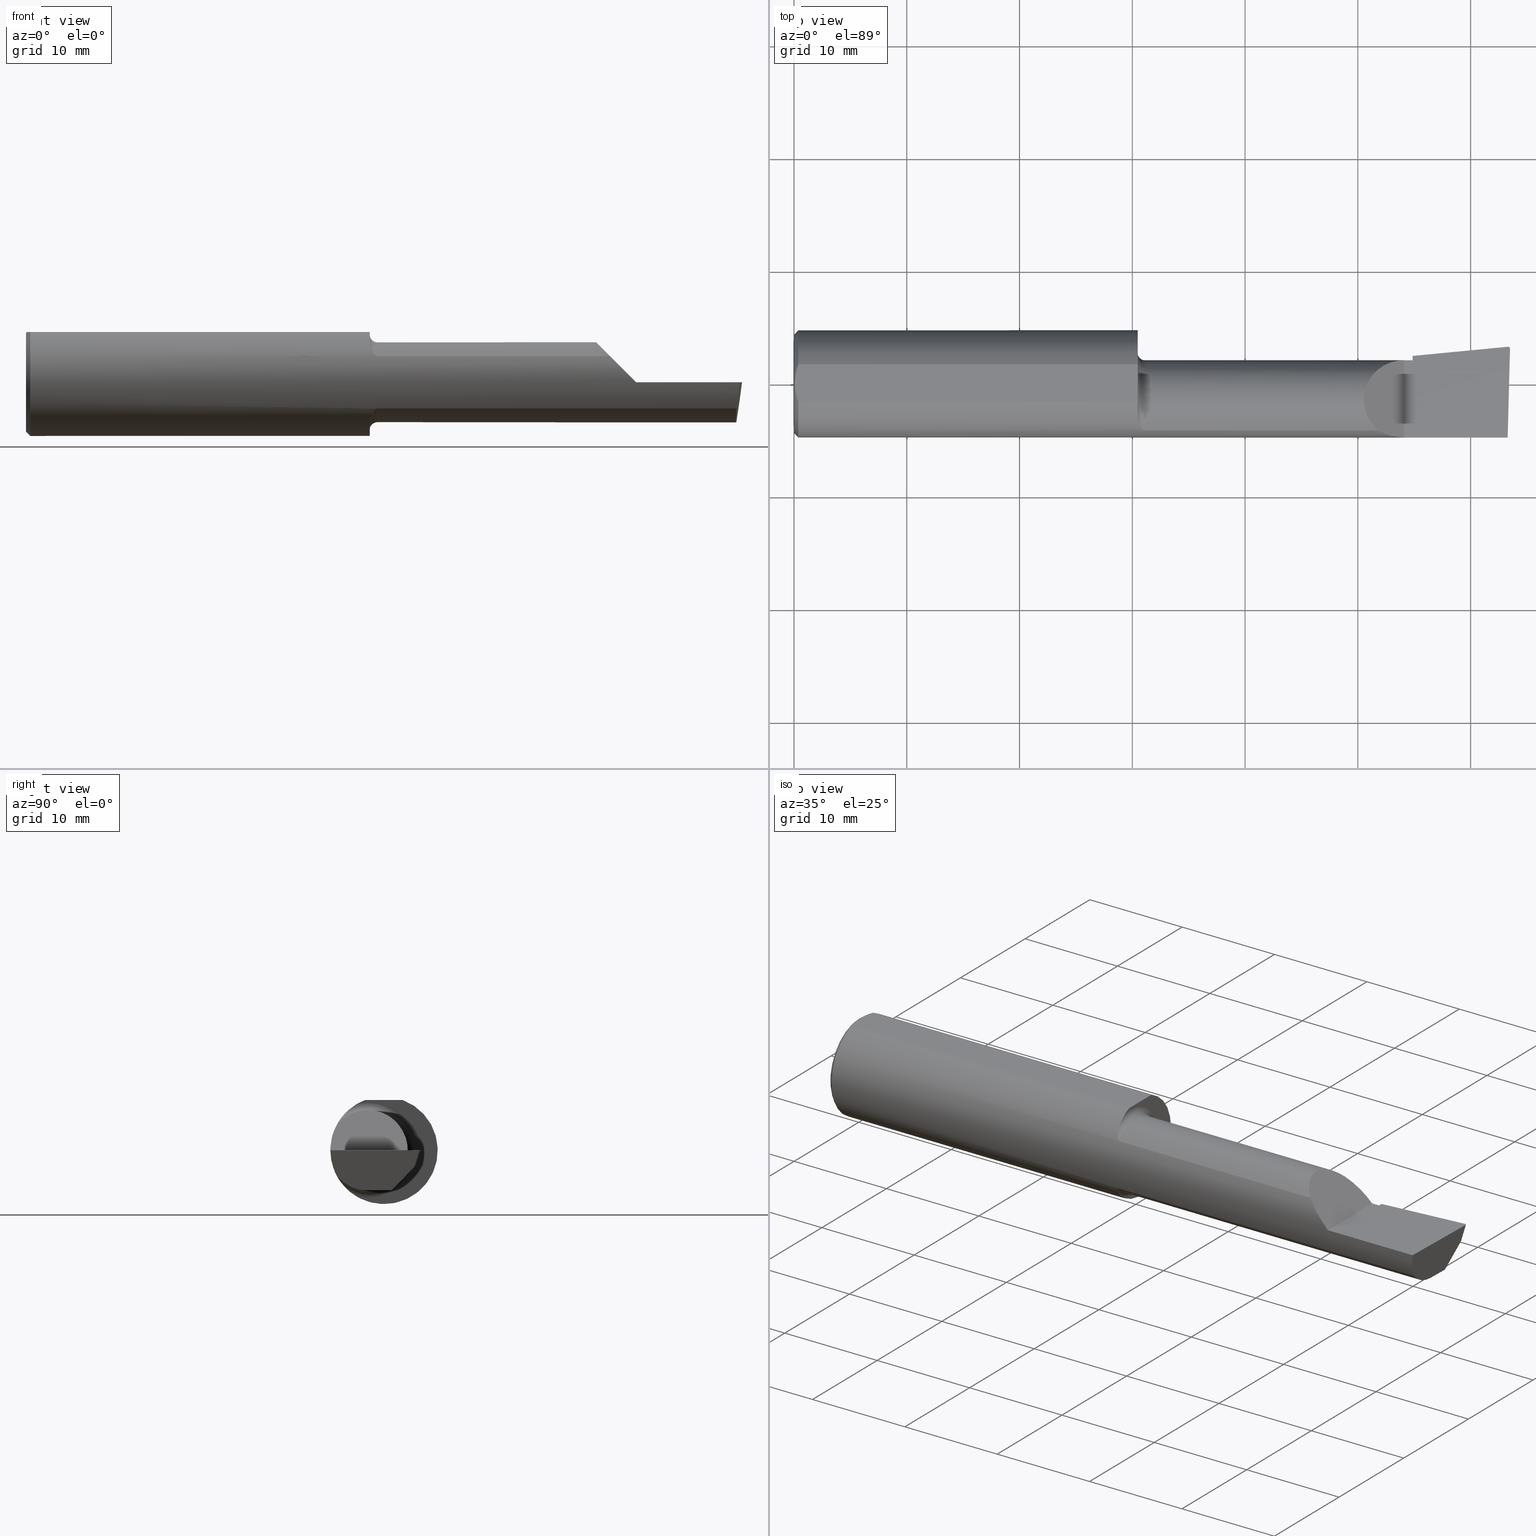
[diagram: canonical four-view strip — front | top / right | iso, engineering-drawing reading convention]
A machine part, canonical four-view strip (front | top / right | iso — engineering-drawing reading convention). The complete STEP part file that produces these views, byte-faithful:
ISO-10303-21;
HEADER;
FILE_DESCRIPTION (( 'STEP AP203' ),
    '1' );
FILE_NAME ('213633-B3201250R.STEP',
    '2024-04-12T22:20:42',
    ( '' ),
    ( '' ),
    'SwSTEP 2.0',
    'SolidWorks 2022',
    '' );
FILE_SCHEMA (( 'CONFIG_CONTROL_DESIGN' ));
ENDSEC;

DATA;
#1 = CARTESIAN_POINT ( 'NONE',  ( 2.159999999999999698, -0.05739999999999999963, -0.1400500000000000633 ) ) ;
#2 = DIRECTION ( 'NONE',  ( 1.000000000000000000, 0.000000000000000000, 0.000000000000000000 ) ) ;
#3 = B_SPLINE_CURVE_WITH_KNOTS ( 'NONE', 3,
 ( #595, #487, #276, #542, #645, #496, #432, #477, #648, #5, #58, #656, #168, #438 ),
 .UNSPECIFIED., .F., .F.,
 ( 4, 2, 2, 2, 2, 2, 4 ),
 ( 0.0002471551878304231319, 0.0008987327522055655899, 0.001550310316580708102, 0.002201887880955850831, 0.002527676663143422521, 0.002690571054237206414, 0.002853465445330989874 ),
 .UNSPECIFIED. ) ;
#4 = PERSON_AND_ORGANIZATION ( #202, #217 ) ;
#5 = CARTESIAN_POINT ( 'NONE',  ( 1.216855994529494112, -0.1603175578889970976, 0.09696363432848424668 ) ) ;
#6 = ORIENTED_EDGE ( 'NONE', *, *, #381, .T. ) ;
#7 = PLANE ( 'NONE',  #586 ) ;
#8 = ORIENTED_EDGE ( 'NONE', *, *, #452, .T. ) ;
#9 = VECTOR ( 'NONE', #337, 39.37007874015748143 ) ;
#10 = ORIENTED_EDGE ( 'NONE', *, *, #290, .T. ) ;
#11 = EDGE_CURVE ( 'NONE', #511, #183, #655, .T. ) ;
#12 = LINE ( 'NONE', #109, #449 ) ;
#13 = B_SPLINE_CURVE_WITH_KNOTS ( 'NONE', 3,
 ( #470, #103, #532, #577, #688, #324 ),
 .UNSPECIFIED., .F., .F.,
 ( 4, 2, 4 ),
 ( 0.003480013901590607410, 0.004330767971208083697, 0.005181522040825559984 ),
 .UNSPECIFIED. ) ;
#14 = ORIENTED_EDGE ( 'NONE', *, *, #399, .T. ) ;
#15 = ORIENTED_EDGE ( 'NONE', *, *, #64, .T. ) ;
#16 = CARTESIAN_POINT ( 'NONE',  ( 0.000000000000000000, 0.000000000000000000, -0.1723499999999996424 ) ) ;
#17 = EDGE_CURVE ( 'NONE', #471, #261, #286, .T. ) ;
#18 = VERTEX_POINT ( 'NONE', #599 ) ;
#19 = VERTEX_POINT ( 'NONE', #445 ) ;
#20 = PRODUCT_DEFINITION_SHAPE ( 'NONE', 'NONE',  #88 ) ;
#21 = EDGE_CURVE ( 'NONE', #98, #345, #391, .T. ) ;
#22 = CARTESIAN_POINT ( 'NONE',  ( 0.003000000000000172667, -0.01126410975715121283, 0.1753500000000000059 ) ) ;
#23 = DIRECTION ( 'NONE',  ( 0.000000000000000000, 0.000000000000000000, 1.000000000000000000 ) ) ;
#24 = AXIS2_PLACEMENT_3D ( 'NONE', #617, #458, #179 ) ;
#25 = EDGE_LOOP ( 'NONE', ( #684, #352, #209, #94 ) ) ;
#26 = CARTESIAN_POINT ( 'NONE',  ( 0.000000000000000000, -0.05740000000000001351, 0.000000000000000000 ) ) ;
#27 = DIRECTION ( 'NONE',  ( -1.000000000000000000, -0.000000000000000000, -0.000000000000000000 ) ) ;
#28 = EDGE_LOOP ( 'NONE', ( #160, #342, #279, #370, #76 ) ) ;
#29 = CARTESIAN_POINT ( 'NONE',  ( 2.486947077001955719, 0.1139931928746992507, -0.05004403198038590711 ) ) ;
#30 = CARTESIAN_POINT ( 'NONE',  ( 2.492671897414695525, 0.1095727882432246530, -0.05516861643763542461 ) ) ;
#31 = DIRECTION ( 'NONE',  ( 0.7071067811865390240, 8.659560562355036396E-17, 0.7071067811865560104 ) ) ;
#32 = VECTOR ( 'NONE', #152, 39.37007874015748854 ) ;
#33 = VECTOR ( 'NONE', #63, 39.37007874015748143 ) ;
#34 = LOCAL_TIME ( 15, 20, 42.00000000000000000, #283 ) ;
#35 = DIRECTION ( 'NONE',  ( 0.000000000000000000, 0.000000000000000000, 1.000000000000000000 ) ) ;
#36 = ADVANCED_FACE ( 'NONE', ( #382 ), #330, .T. ) ;
#37 = DIRECTION ( 'NONE',  ( 1.000000000000000000, 6.829619984160658046E-18, 0.000000000000000000 ) ) ;
#38 = ADVANCED_FACE ( 'NONE', ( #543 ), #281, .T. ) ;
#39 = LINE ( 'NONE', #264, #446 ) ;
#40 = ORIENTED_EDGE ( 'NONE', *, *, #563, .F. ) ;
#41 = ADVANCED_BREP_SHAPE_REPRESENTATION ( '213633-B3201250R', ( #199, #158 ), #374 ) ;
#42 = CARTESIAN_POINT ( 'NONE',  ( 2.097861799102314961, -0.1873500000000000165, 0.03213820089768509858 ) ) ;
#43 = EDGE_LOOP ( 'NONE', ( #150, #400, #474, #394 ) ) ;
#44 =( NAMED_UNIT ( * ) PLANE_ANGLE_UNIT ( ) SI_UNIT ( $, .RADIAN. ) );
#45 = DIRECTION ( 'NONE',  ( 0.000000000000000000, 0.000000000000000000, 1.000000000000000000 ) ) ;
#46 = ORIENTED_EDGE ( 'NONE', *, *, #214, .T. ) ;
#47 = LINE ( 'NONE', #95, #275 ) ;
#48 = DIRECTION ( 'NONE',  ( -0.09165774897393341725, 0.9519021185660614393, -0.2923717047227303856 ) ) ;
#49 = ORIENTED_EDGE ( 'NONE', *, *, #344, .T. ) ;
#50 = DIRECTION ( 'NONE',  ( -1.000000000000000000, -0.000000000000000000, -0.000000000000000000 ) ) ;
#51 = EDGE_LOOP ( 'NONE', ( #373, #447, #629, #468, #489, #244, #80, #126 ) ) ;
#52 = LOCAL_TIME ( 15, 20, 42.00000000000000000, #174 ) ;
#53 = DIRECTION ( 'NONE',  ( 0.000000000000000000, 0.000000000000000000, 1.000000000000000000 ) ) ;
#54 = CARTESIAN_POINT ( 'NONE',  ( 2.493310817358646236, 0.1299961668063693565, 6.829023555897993829E-17 ) ) ;
#55 = SECURITY_CLASSIFICATION ( '', '', #428 ) ;
#56 = EDGE_CURVE ( 'NONE', #261, #339, #575, .T. ) ;
#57 = CALENDAR_DATE ( 2024, 12, 4 ) ;
#58 = CARTESIAN_POINT ( 'NONE',  ( 1.218001859868117043, -0.1612625562479372554, 0.09537826053888157074 ) ) ;
#59 = CARTESIAN_POINT ( 'NONE',  ( 1.217975941902153636, -0.1612443294219082224, -0.09540922431498180534 ) ) ;
#60 = DATE_AND_TIME ( #653, #52 ) ;
#61 =( BOUNDED_CURVE ( )  B_SPLINE_CURVE ( 3, ( #334, #163, #377, #604 ),
 .UNSPECIFIED., .F., .F. ) 
 B_SPLINE_CURVE_WITH_KNOTS ( ( 4, 4 ),
 ( 0.8516985021657648147, 1.360746882515198930 ),
 .UNSPECIFIED. ) 
 CURVE ( )  GEOMETRIC_REPRESENTATION_ITEM ( )  RATIONAL_B_SPLINE_CURVE ( ( 1.000000000000000000, 0.9785221379938656705, 0.9785221379938656705, 1.000000000000000000 ) ) 
 REPRESENTATION_ITEM ( '' )  );
#62 = DIRECTION ( 'NONE',  ( -0.7071067811865511255, 0.000000000000000000, 0.7071067811865437980 ) ) ;
#63 = DIRECTION ( 'NONE',  ( -1.000000000000000000, -6.829619984160658046E-18, -0.000000000000000000 ) ) ;
#64 = EDGE_CURVE ( 'NONE', #609, #261, #243, .T. ) ;
#65 = VERTEX_POINT ( 'NONE', #361 ) ;
#66 = APPROVAL_ROLE ( '' ) ;
#67 = DIRECTION ( 'NONE',  ( 0.000000000000000000, 1.000000000000000000, 8.537024980200821325E-17 ) ) ;
#68 = CARTESIAN_POINT ( 'NONE',  ( 1.199999999999999956, 0.1076499999999999124, 0.000000000000000000 ) ) ;
#69 = VECTOR ( 'NONE', #153, 39.37007874015748143 ) ;
#70 = ORIENTED_EDGE ( 'NONE', *, *, #392, .F. ) ;
#71 = CARTESIAN_POINT ( 'NONE',  ( 0.003000000000000218638, 2.334609556160449697E-17, 0.1753499999999999781 ) ) ;
#72 = ORIENTED_EDGE ( 'NONE', *, *, #21, .T. ) ;
#73 = ORIENTED_EDGE ( 'NONE', *, *, #442, .T. ) ;
#74 = DIRECTION ( 'NONE',  ( 0.000000000000000000, 0.000000000000000000, -1.000000000000000000 ) ) ;
#75 = CARTESIAN_POINT ( 'NONE',  ( 2.129999999999999893, 0.08264999999999983471, 1.065442715258197396E-16 ) ) ;
#76 = ORIENTED_EDGE ( 'NONE', *, *, #568, .T. ) ;
#77 = CARTESIAN_POINT ( 'NONE',  ( 2.500000000000000000, -0.05739999999999999963, -0.1400500000000000633 ) ) ;
#78 = DIMENSIONAL_EXPONENTS ( 1.000000000000000000, 0.000000000000000000, 0.000000000000000000, 0.000000000000000000, 0.000000000000000000, 0.000000000000000000, 0.000000000000000000 ) ;
#79 = FACE_OUTER_BOUND ( 'NONE', #102, .T. ) ;
#80 = ORIENTED_EDGE ( 'NONE', *, *, #162, .F. ) ;
#81 = FACE_OUTER_BOUND ( 'NONE', #498, .T. ) ;
#82 = LINE ( 'NONE', #354, #100 ) ;
#83 = CARTESIAN_POINT ( 'NONE',  ( 0.000000000000000000, 0.000000000000000000, 0.000000000000000000 ) ) ;
#84 = LINE ( 'NONE', #303, #395 ) ;
#85 = DIRECTION ( 'NONE',  ( 1.000000000000000000, 0.000000000000000000, 0.000000000000000000 ) ) ;
#86 = CARTESIAN_POINT ( 'NONE',  ( 2.486346664144836183, 0.1139780975458775658, -0.04999999999999999584 ) ) ;
#87 = VECTOR ( 'NONE', #372, 39.37007874015748143 ) ;
#88 = PRODUCT_DEFINITION ( 'UNKNOWN', '', #643, #502 ) ;
#89 = VECTOR ( 'NONE', #692, 39.37007874015748854 ) ;
#90 = EDGE_CURVE ( 'NONE', #421, #633, #82, .T. ) ;
#91 = AXIS2_PLACEMENT_3D ( 'NONE', #583, #101, #320 ) ;
#92 = APPLICATION_PROTOCOL_DEFINITION ( 'international standard', 'config_control_design', 1994, #407 ) ;
#93 = CARTESIAN_POINT ( 'NONE',  ( 1.225000000000000089, -0.1635956445993032859, -0.09130436773856132060 ) ) ;
#94 = ORIENTED_EDGE ( 'NONE', *, *, #541, .F. ) ;
#95 = CARTESIAN_POINT ( 'NONE',  ( 2.159999999999999698, 0.06382066673065311946, -0.06931012851386070261 ) ) ;
#96 = CARTESIAN_POINT ( 'NONE',  ( 2.492906680581862489, 0.1299669910246664395, 6.902945873237397134E-17 ) ) ;
#97 = ORIENTED_EDGE ( 'NONE', *, *, #293, .F. ) ;
#98 = VERTEX_POINT ( 'NONE', #674 ) ;
#99 = VECTOR ( 'NONE', #450, 39.37007874015748143 ) ;
#100 = VECTOR ( 'NONE', #411, 39.37007874015748854 ) ;
#101 = DIRECTION ( 'NONE',  ( -1.000000000000000000, -6.829619984160658046E-18, -0.000000000000000000 ) ) ;
#102 = EDGE_LOOP ( 'NONE', ( #123, #14, #378, #10, #384, #212, #204, #8, #680, #367, #135, #546, #318 ) ) ;
#103 = CARTESIAN_POINT ( 'NONE',  ( 0.003000000000000169632, 0.01127363201155560934, 0.1753499999999999781 ) ) ;
#104 = VERTEX_POINT ( 'NONE', #86 ) ;
#105 = APPROVAL_STATUS ( 'not_yet_approved' ) ;
#106 = EDGE_CURVE ( 'NONE', #436, #357, #398, .T. ) ;
#107 = EDGE_LOOP ( 'NONE', ( #327, #559, #178, #476, #693, #501, #325, #666, #6, #215 ) ) ;
#108 = CIRCLE ( 'NONE', #506, 0.1400499999999999801 ) ;
#109 = CARTESIAN_POINT ( 'NONE',  ( 0.000000000000000000, -0.06597272163553657975, 0.1753499999999999781 ) ) ;
#110 = CARTESIAN_POINT ( 'NONE',  ( 1.220881499230870304, -0.1628722075910993550, -0.09260290410947824569 ) ) ;
#111 = PERSON_AND_ORGANIZATION ( #202, #217 ) ;
#112 = EDGE_CURVE ( 'NONE', #148, #118, #618, .T. ) ;
#113 = CARTESIAN_POINT ( 'NONE',  ( 2.129999999999999893, -0.2500000000000000555, 1.065442715258197396E-16 ) ) ;
#114 = CARTESIAN_POINT ( 'NONE',  ( 1.216814909379088760, -0.1602818635245160106, -0.09702252612905261364 ) ) ;
#115 = DATE_AND_TIME ( #482, #206 ) ;
#116 = CARTESIAN_POINT ( 'NONE',  ( 0.01499999999999999424, 0.000000000000000000, 0.000000000000000000 ) ) ;
#117 = CARTESIAN_POINT ( 'NONE',  ( 1.203041727949557549, -0.1311116946065053745, -0.1340922927843368473 ) ) ;
#118 = VERTEX_POINT ( 'NONE', #252 ) ;
#119 = FACE_OUTER_BOUND ( 'NONE', #646, .T. ) ;
#120 = AXIS2_PLACEMENT_3D ( 'NONE', #312, #316, #267 ) ;
#121 = ORIENTED_EDGE ( 'NONE', *, *, #162, .T. ) ;
#122 = CIRCLE ( 'NONE', #24, 0.1873499999999999888 ) ;
#123 = ORIENTED_EDGE ( 'NONE', *, *, #17, .F. ) ;
#124 = CYLINDRICAL_SURFACE ( 'NONE', #253, 0.1400499999999999523 ) ;
#125 = CYLINDRICAL_SURFACE ( 'NONE', #355, 0.006499999999999996232 ) ;
#126 = ORIENTED_EDGE ( 'NONE', *, *, #273, .F. ) ;
#127 = CARTESIAN_POINT ( 'NONE',  ( 0.01499999999999997863, -0.06597272163553657975, 0.1753499999999999781 ) ) ;
#128 = CARTESIAN_POINT ( 'NONE',  ( 2.160000000000000142, 0.08264999999999997349, 3.267291166268305196E-16 ) ) ;
#129 = EDGE_CURVE ( 'NONE', #183, #154, #566, .T. ) ;
#130 = ORIENTED_EDGE ( 'NONE', *, *, #452, .F. ) ;
#131 = CARTESIAN_POINT ( 'NONE',  ( 0.01499999999999997863, -0.06597272163553657975, 0.1753499999999999781 ) ) ;
#132 = DIRECTION ( 'NONE',  ( 1.000000000000000000, 6.829619984160658046E-18, 0.000000000000000000 ) ) ;
#133 = APPROVAL_PERSON_ORGANIZATION ( #167, #165, #66 ) ;
#134 = AXIS2_PLACEMENT_3D ( 'NONE', #561, #132, #520 ) ;
#135 = ORIENTED_EDGE ( 'NONE', *, *, #362, .T. ) ;
#136 = CARTESIAN_POINT ( 'NONE',  ( 0.004093196532652216939, -0.02240707710020816909, 0.1753499999999999504 ) ) ;
#137 = FACE_OUTER_BOUND ( 'NONE', #299, .T. ) ;
#138 = ADVANCED_FACE ( 'NONE', ( #623 ), #301, .T. ) ;
#139 = CARTESIAN_POINT ( 'NONE',  ( 0.000000000000000000, 0.000000000000000000, 0.000000000000000000 ) ) ;
#140 = CARTESIAN_POINT ( 'NONE',  ( 2.467035950088918739, 0.05927214514111212029, -0.1998254950914886141 ) ) ;
#141 = CARTESIAN_POINT ( 'NONE',  ( 2.491672876940991710, -0.1873499999999999888, 6.915950918908297591E-17 ) ) ;
#142 = CARTESIAN_POINT ( 'NONE',  ( 0.01499999999999999424, 0.000000000000000000, -0.1873499999999999888 ) ) ;
#143 = ADVANCED_FACE ( 'NONE', ( #137 ), #125, .T. ) ;
#144 = AXIS2_PLACEMENT_3D ( 'NONE', #414, #50, #369 ) ;
#145 = AXIS2_PLACEMENT_3D ( 'NONE', #68, #224, #649 ) ;
#146 = DIRECTION ( 'NONE',  ( 0.1219104985251946854, 0.000000000000000000, 0.9925410975618785825 ) ) ;
#147 = CARTESIAN_POINT ( 'NONE',  ( 1.199999999999999956, -0.09715400696864127938, -0.1601908905959923690 ) ) ;
#148 = VERTEX_POINT ( 'NONE', #306 ) ;
#149 = DIRECTION ( 'NONE',  ( 0.7071067811865390240, 0.000000000000000000, -0.7071067811865560104 ) ) ;
#150 = ORIENTED_EDGE ( 'NONE', *, *, #505, .T. ) ;
#151 =( BOUNDED_CURVE ( )  B_SPLINE_CURVE ( 3, ( #593, #483, #548, #326 ),
 .UNSPECIFIED., .F., .T. ) 
 B_SPLINE_CURVE_WITH_KNOTS ( ( 4, 4 ),
 ( 5.422530673488457964, 7.853981633974482790 ),
 .UNSPECIFIED. ) 
 CURVE ( )  GEOMETRIC_REPRESENTATION_ITEM ( )  RATIONAL_B_SPLINE_CURVE ( ( 1.000000000000000000, 0.5651045289226861446, 0.5651045289226861446, 1.000000000000000000 ) ) 
 REPRESENTATION_ITEM ( '' )  );
#152 = DIRECTION ( 'NONE',  ( -0.1240019227988272688, -0.3022330132596590113, -0.9451342385281470415 ) ) ;
#153 = DIRECTION ( 'NONE',  ( 1.000000000000000000, 0.000000000000000000, 0.000000000000000000 ) ) ;
#154 = VERTEX_POINT ( 'NONE', #128 ) ;
#155 = CIRCLE ( 'NONE', #144, 0.1723499999999996424 ) ;
#156 = LOCAL_TIME ( 15, 20, 42.00000000000000000, #547 ) ;
#157 = CARTESIAN_POINT ( 'NONE',  ( 2.159999999999999698, 0.09791172361283669023, 0.000000000000000000 ) ) ;
#158 = AXIS2_PLACEMENT_3D ( 'NONE', #469, #35, #85 ) ;
#159 = CARTESIAN_POINT ( 'NONE',  ( 2.481080296960509024, -0.1635956445993031472, -0.09130436773856158428 ) ) ;
#160 = ORIENTED_EDGE ( 'NONE', *, *, #112, .F. ) ;
#161 = EDGE_CURVE ( 'NONE', #357, #19, #495, .T. ) ;
#162 = EDGE_CURVE ( 'NONE', #65, #555, #516, .T. ) ;
#163 = CARTESIAN_POINT ( 'NONE',  ( 2.484117089522338340, -0.1792580844883771840, -0.06324101202936123489 ) ) ;
#164 = CARTESIAN_POINT ( 'NONE',  ( 2.493512870449284158, 0.1299961668063693288, 3.414809992080329023E-17 ) ) ;
#165 = APPROVAL ( #544, 'UNSPECIFIED' ) ;
#166 = EDGE_CURVE ( 'NONE', #614, #345, #255, .T. ) ;
#167 = PERSON_AND_ORGANIZATION ( #202, #217 ) ;
#168 = CARTESIAN_POINT ( 'NONE',  ( 1.222800914500664859, -0.1635956445997550635, 0.09130436773775207904 ) ) ;
#169 = CARTESIAN_POINT ( 'NONE',  ( 1.225000000000000089, -0.1635956445993032859, -0.09130436773856132060 ) ) ;
#170 = COORDINATED_UNIVERSAL_TIME_OFFSET ( 8, 0, .BEHIND. ) ;
#171 = DIRECTION ( 'NONE',  ( 0.000000000000000000, -1.438723400918613551E-16, -1.000000000000000000 ) ) ;
#172 = AXIS2_PLACEMENT_3D ( 'NONE', #485, #2, #602 ) ;
#173 = ORIENTED_EDGE ( 'NONE', *, *, #514, .F. ) ;
#174 = COORDINATED_UNIVERSAL_TIME_OFFSET ( 8, 0, .BEHIND. ) ;
#175 = DIRECTION ( 'NONE',  ( -4.858719700838190352E-34, -8.537024980200823790E-17, 1.000000000000000000 ) ) ;
#176 = LINE ( 'NONE', #228, #240 ) ;
#177 = VERTEX_POINT ( 'NONE', #194 ) ;
#178 = ORIENTED_EDGE ( 'NONE', *, *, #64, .F. ) ;
#179 = DIRECTION ( 'NONE',  ( 0.000000000000000000, 1.000000000000000000, 0.000000000000000000 ) ) ;
#180 = AXIS2_PLACEMENT_3D ( 'NONE', #83, #512, #396 ) ;
#181 = DIRECTION ( 'NONE',  ( -1.000000000000000000, -6.829619984160658046E-18, -0.000000000000000000 ) ) ;
#182 = CIRCLE ( 'NONE', #305, 0.1873499999999999888 ) ;
#183 = VERTEX_POINT ( 'NONE', #75 ) ;
#184 = ADVANCED_FACE ( 'NONE', ( #79 ), #513, .T. ) ;
#185 = CARTESIAN_POINT ( 'NONE',  ( 2.159999999999999698, -0.05739999999999999963, 0.000000000000000000 ) ) ;
#186 = CARTESIAN_POINT ( 'NONE',  ( 1.199999999999999956, -0.09715400696864127938, -0.1601908905959923690 ) ) ;
#187 = CC_DESIGN_PERSON_AND_ORGANIZATION_ASSIGNMENT ( #571, #631, ( #238 ) ) ;
#188 = ORIENTED_EDGE ( 'NONE', *, *, #587, .T. ) ;
#189 = CARTESIAN_POINT ( 'NONE',  ( 2.491786964307025176, 0.1037103972642544197, -0.06112352112763063533 ) ) ;
#190 = DIRECTION ( 'NONE',  ( -0.1240019227988272965, -0.3022330132596590668, -0.9451342385281470415 ) ) ;
#191 = ORIENTED_EDGE ( 'NONE', *, *, #691, .T. ) ;
#192 = DIRECTION ( 'NONE',  ( 0.000000000000000000, 0.000000000000000000, -1.000000000000000000 ) ) ;
#193 = ADVANCED_FACE ( 'NONE', ( #664 ), #508, .F. ) ;
#194 = CARTESIAN_POINT ( 'NONE',  ( 2.159999999999999698, -0.05739999999999999963, -0.1400500000000000633 ) ) ;
#195 = CIRCLE ( 'NONE', #606, 0.1650499999999999190 ) ;
#196 = DIRECTION ( 'NONE',  ( 1.000000000000000000, 0.000000000000000000, 0.000000000000000000 ) ) ;
#197 = ADVANCED_FACE ( 'NONE', ( #409 ), #402, .F. ) ;
#198 = CARTESIAN_POINT ( 'NONE',  ( 1.199999999999999956, -0.1045082199249681987, -0.1557306416133593385 ) ) ;
#199 = MANIFOLD_SOLID_BREP ( 'Fillet1', #640 ) ;
#200 = DIRECTION ( 'NONE',  ( -0.9922060308645607174, 0.02598182930461495621, 0.1218693434050595603 ) ) ;
#201 = CARTESIAN_POINT ( 'NONE',  ( 2.486548593472166058, 0.1139975411286092838, -0.05000000000000005829 ) ) ;
#202 = PERSON ( 'UNSPECIFIED', 'UNSPECIFIED', 'UNSPECIFIED', ('UNSPECIFIED'), ('UNSPECIFIED'), ('UNSPECIFIED') ) ;
#203 = CARTESIAN_POINT ( 'NONE',  ( 2.159999999999999698, 0.06382066673065311946, -0.06931012851386070261 ) ) ;
#204 = ORIENTED_EDGE ( 'NONE', *, *, #161, .F. ) ;
#205 = VECTOR ( 'NONE', #365, 39.37007874015748143 ) ;
#206 = LOCAL_TIME ( 15, 20, 42.00000000000000000, #170 ) ;
#207 = PLANE ( 'NONE',  #573 ) ;
#208 = CARTESIAN_POINT ( 'NONE',  ( 2.129999999999999893, -0.1873499999999999888, 1.065442715258197396E-16 ) ) ;
#209 = ORIENTED_EDGE ( 'NONE', *, *, #237, .T. ) ;
#210 = APPROVAL_STATUS ( 'not_yet_approved' ) ;
#211 = DIRECTION ( 'NONE',  ( -1.000000000000000000, -6.829619984160658046E-18, -0.000000000000000000 ) ) ;
#212 = ORIENTED_EDGE ( 'NONE', *, *, #442, .F. ) ;
#213 = PLANE ( 'NONE',  #216 ) ;
#214 = EDGE_CURVE ( 'NONE', #421, #451, #84, .T. ) ;
#215 = ORIENTED_EDGE ( 'NONE', *, *, #611, .F. ) ;
#216 = AXIS2_PLACEMENT_3D ( 'NONE', #268, #48, #467 ) ;
#217 = ORGANIZATION ( 'UNSPECIFIED', 'UNSPECIFIED', '' ) ;
#218 = CARTESIAN_POINT ( 'NONE',  ( 2.477873865042410806, -0.05739999999999999963, -0.1400500000000000633 ) ) ;
#219 = APPROVAL ( #105, 'UNSPECIFIED' ) ;
#220 = EDGE_CURVE ( 'NONE', #104, #419, #686, .T. ) ;
#221 = ORIENTED_EDGE ( 'NONE', *, *, #11, .T. ) ;
#222 = APPROVAL_DATE_TIME ( #336, #313 ) ;
#223 = CARTESIAN_POINT ( 'NONE',  ( 1.199999999999999956, 0.06597272163553663527, 0.1753499999999999781 ) ) ;
#224 = DIRECTION ( 'NONE',  ( 1.000000000000000000, 6.829619984160658046E-18, 0.000000000000000000 ) ) ;
#225 = APPLICATION_CONTEXT ( 'configuration controlled 3d designs of mechanical parts and assemblies' ) ;
#226 = CARTESIAN_POINT ( 'NONE',  ( 2.491786964307025176, 0.1037103972642544197, -0.06112352112763063533 ) ) ;
#227 = VERTEX_POINT ( 'NONE', #464 ) ;
#228 = CARTESIAN_POINT ( 'NONE',  ( 2.490039159128059953, -0.2497391662021650194, 6.932588350567417155E-17 ) ) ;
#229 = ORIENTED_EDGE ( 'NONE', *, *, #112, .T. ) ;
#230 = PERSON_AND_ORGANIZATION ( #202, #217 ) ;
#231 = CARTESIAN_POINT ( 'NONE',  ( 2.480058035321255350, 0.02601009779168076547, -0.1400500000000000633 ) ) ;
#232 = ORIENTED_EDGE ( 'NONE', *, *, #392, .T. ) ;
#233 = ORIENTED_EDGE ( 'NONE', *, *, #587, .F. ) ;
#234 = CARTESIAN_POINT ( 'NONE',  ( 2.499806390372749210, 0.1232563466314183093, 6.833120963331977295E-17 ) ) ;
#235 = B_SPLINE_CURVE_WITH_KNOTS ( 'NONE', 3,
 ( #131, #503, #622, #136, #22, #71 ),
 .UNSPECIFIED., .F., .F.,
 ( 4, 2, 4 ),
 ( 0.001779942938356815062, 0.002629978419973711019, 0.003480013901590607410 ),
 .UNSPECIFIED. ) ;
#236 = CARTESIAN_POINT ( 'NONE',  ( 2.129999999999999893, -0.2500000000000000555, 1.065442715258197396E-16 ) ) ;
#237 = EDGE_CURVE ( 'NONE', #104, #18, #679, .T. ) ;
#238 = PRODUCT ( '213633-B3201250R', '213633-B3201250R', '', ( #472 ) ) ;
#239 = CARTESIAN_POINT ( 'NONE',  ( 2.159999999999999698, 0.09456875743780475407, -0.01088401009027230477 ) ) ;
#240 = VECTOR ( 'NONE', #435, 39.37007874015748854 ) ;
#241 = CARTESIAN_POINT ( 'NONE',  ( 1.200384441902395682, -0.1115101367984840525, -0.1507946173152222846 ) ) ;
#242 = CC_DESIGN_DATE_AND_TIME_ASSIGNMENT ( #588, #385, ( #55 ) ) ;
#243 = CIRCLE ( 'NONE', #652, 0.1400499999999999245 ) ;
#244 = ORIENTED_EDGE ( 'NONE', *, *, #691, .F. ) ;
#245 = DIRECTION ( 'NONE',  ( 1.000000000000000000, 6.829619984160658046E-18, 0.000000000000000000 ) ) ;
#246 = DIRECTION ( 'NONE',  ( 0.000000000000000000, 0.9524855432518806175, -0.3045837978228160825 ) ) ;
#247 = EDGE_CURVE ( 'NONE', #500, #479, #676, .T. ) ;
#248 = CARTESIAN_POINT ( 'NONE',  ( 2.129999999999999893, -0.1873499999999999888, 1.065442715258197396E-16 ) ) ;
#249 = CARTESIAN_POINT ( 'NONE',  ( 1.225000000000000089, -0.05739999999999999963, 0.000000000000000000 ) ) ;
#250 = FACE_OUTER_BOUND ( 'NONE', #287, .T. ) ;
#251 = CIRCLE ( 'NONE', #393, 0.1873499999999999888 ) ;
#252 = CARTESIAN_POINT ( 'NONE',  ( 0.003000000000000218638, 2.334609556160449697E-17, 0.1753499999999999781 ) ) ;
#253 = AXIS2_PLACEMENT_3D ( 'NONE', #26, #360, #670 ) ;
#254 = APPLICATION_PROTOCOL_DEFINITION ( 'international standard', 'config_control_design', 1994, #225 ) ;
#255 = LINE ( 'NONE', #347, #284 ) ;
#256 =( BOUNDED_CURVE ( )  B_SPLINE_CURVE ( 3, ( #499, #444, #659, #663 ),
 .UNSPECIFIED., .F., .T. ) 
 B_SPLINE_CURVE_WITH_KNOTS ( ( 4, 4 ),
 ( 1.953092279228226147, 3.511516179717395492 ),
 .UNSPECIFIED. ) 
 CURVE ( )  GEOMETRIC_REPRESENTATION_ITEM ( )  RATIONAL_B_SPLINE_CURVE ( ( 1.000000000000000000, 0.8076450242550619052, 0.8076450242550619052, 1.000000000000000000 ) ) 
 REPRESENTATION_ITEM ( '' )  );
#257 = COORDINATED_UNIVERSAL_TIME_OFFSET ( 8, 0, .BEHIND. ) ;
#258 = DIRECTION ( 'NONE',  ( -1.000000000000000000, -0.000000000000000000, -0.000000000000000000 ) ) ;
#259 = ORIENTED_EDGE ( 'NONE', *, *, #488, .T. ) ;
#260 = CARTESIAN_POINT ( 'NONE',  ( 2.486346664144836183, 0.1139780975458775658, -0.04999999999999999584 ) ) ;
#261 = VERTEX_POINT ( 'NONE', #93 ) ;
#262 = CC_DESIGN_APPROVAL ( #165, ( #55 ) ) ;
#263 = AXIS2_PLACEMENT_3D ( 'NONE', #249, #457, #671 ) ;
#264 = CARTESIAN_POINT ( 'NONE',  ( 3.377502344341257155E-32, -0.1873499999999999610, 3.267291166268304703E-16 ) ) ;
#265 = ORIENTED_EDGE ( 'NONE', *, *, #90, .F. ) ;
#266 = EDGE_CURVE ( 'NONE', #148, #500, #155, .T. ) ;
#267 = DIRECTION ( 'NONE',  ( 0.000000000000000000, 0.6963153109074925462, 0.7177360153954948085 ) ) ;
#268 = CARTESIAN_POINT ( 'NONE',  ( 2.509953961983671711, 0.1316084575252021438, -6.829619984160658046E-17 ) ) ;
#269 = ORIENTED_EDGE ( 'NONE', *, *, #541, .T. ) ;
#270 = ADVANCED_FACE ( 'NONE', ( #625 ), #213, .T. ) ;
#271 = CARTESIAN_POINT ( 'NONE',  ( 0.01499999999999999424, 0.000000000000000000, -0.1873499999999999888 ) ) ;
#272 = EDGE_LOOP ( 'NONE', ( #619, #269, #443, #321 ) ) ;
#273 = EDGE_CURVE ( 'NONE', #18, #65, #363, .T. ) ;
#274 = VECTOR ( 'NONE', #149, 39.37007874015748143 ) ;
#275 = VECTOR ( 'NONE', #371, 39.37007874015748143 ) ;
#276 = CARTESIAN_POINT ( 'NONE',  ( 1.200383728133729955, -0.1114837668894152756, 0.1508119329971095712 ) ) ;
#277 = CARTESIAN_POINT ( 'NONE',  ( 2.493108609909192808, 0.1299864346073983934, 6.831113838336315012E-17 ) ) ;
#278 = CARTESIAN_POINT ( 'NONE',  ( 2.159999999999999698, 0.09791172361283669023, 0.000000000000000000 ) ) ;
#279 = ORIENTED_EDGE ( 'NONE', *, *, #247, .T. ) ;
#280 = DIRECTION ( 'NONE',  ( 6.829619984160658046E-18, -1.000000000000000000, 0.000000000000000000 ) ) ;
#281 = PLANE ( 'NONE',  #145 ) ;
#282 = ORIENTED_EDGE ( 'NONE', *, *, #641, .T. ) ;
#283 = COORDINATED_UNIVERSAL_TIME_OFFSET ( 8, 0, .BEHIND. ) ;
#284 = VECTOR ( 'NONE', #557, 39.37007874015748143 ) ;
#285 = FACE_OUTER_BOUND ( 'NONE', #637, .T. ) ;
#286 = LINE ( 'NONE', #289, #33 ) ;
#287 = EDGE_LOOP ( 'NONE', ( #259, #535 ) ) ;
#288 = EDGE_CURVE ( 'NONE', #471, #451, #461, .T. ) ;
#289 = CARTESIAN_POINT ( 'NONE',  ( 1.692500000000000115, -0.1635956445993031472, -0.09130436773856158428 ) ) ;
#290 = EDGE_CURVE ( 'NONE', #511, #227, #356, .T. ) ;
#291 = ORIENTED_EDGE ( 'NONE', *, *, #166, .F. ) ;
#292 = DIRECTION ( 'NONE',  ( -6.829619984160658816E-18, 1.000000000000000000, 7.059994452165177242E-34 ) ) ;
#293 = EDGE_CURVE ( 'NONE', #651, #511, #39, .T. ) ;
#294 = CARTESIAN_POINT ( 'NONE',  ( 2.159999999999999698, 0.06382066673065311946, -0.06931012851386070261 ) ) ;
#295 = CC_DESIGN_SECURITY_CLASSIFICATION ( #55, ( #643 ) ) ;
#296 = ORIENTED_EDGE ( 'NONE', *, *, #415, .T. ) ;
#297 = DIRECTION ( 'NONE',  ( 0.000000000000000000, -1.000000000000000000, 0.000000000000000000 ) ) ;
#298 = DIRECTION ( 'NONE',  ( 6.829619984160658046E-18, -1.000000000000000000, 1.438723400918613551E-16 ) ) ;
#299 = EDGE_LOOP ( 'NONE', ( #540, #349, #403, #669 ) ) ;
#300 = PLANE ( 'NONE',  #338 ) ;
#301 = CYLINDRICAL_SURFACE ( 'NONE', #584, 0.006499999999999996232 ) ;
#302 = FACE_OUTER_BOUND ( 'NONE', #28, .T. ) ;
#303 = CARTESIAN_POINT ( 'NONE',  ( 2.477889026591898247, -0.05682100378451881983, -0.1400500000000000633 ) ) ;
#304 = LINE ( 'NONE', #682, #205 ) ;
#305 = AXIS2_PLACEMENT_3D ( 'NONE', #116, #441, #53 ) ;
#306 = CARTESIAN_POINT ( 'NONE',  ( 0.000000000000000000, 2.202527268266512578E-17, 0.1723499999999996424 ) ) ;
#307 = CC_DESIGN_APPROVAL ( #313, ( #88 ) ) ;
#308 = PERSON_AND_ORGANIZATION ( #202, #217 ) ;
#309 = CARTESIAN_POINT ( 'NONE',  ( 2.486748873877666188, 0.1140025764947606296, -0.05001468779820771038 ) ) ;
#310 = EDGE_CURVE ( 'NONE', #98, #419, #635, .T. ) ;
#311 = ORIENTED_EDGE ( 'NONE', *, *, #480, .F. ) ;
#312 = CARTESIAN_POINT ( 'NONE',  ( 2.511419111345317923, 0.1163922996227946260, -0.04999999999999999584 ) ) ;
#313 = APPROVAL ( #210, 'UNSPECIFIED' ) ;
#314 = CARTESIAN_POINT ( 'NONE',  ( 2.486947077001955719, 0.1139931928746992507, -0.05004403198038590711 ) ) ;
#315 = ORIENTED_EDGE ( 'NONE', *, *, #607, .T. ) ;
#316 = DIRECTION ( 'NONE',  ( -0.06894566448119621160, 0.7160281025913034503, -0.6946583704589934793 ) ) ;
#317 = DIRECTION ( 'NONE',  ( -0.1240019227988272965, -0.3022330132596590668, -0.9451342385281470415 ) ) ;
#318 = ORIENTED_EDGE ( 'NONE', *, *, #56, .F. ) ;
#319 = EDGE_CURVE ( 'NONE', #19, #339, #195, .T. ) ;
#320 = DIRECTION ( 'NONE',  ( 0.000000000000000000, -1.000000000000000000, 0.000000000000000000 ) ) ;
#321 = ORIENTED_EDGE ( 'NONE', *, *, #591, .F. ) ;
#322 = EDGE_CURVE ( 'NONE', #609, #227, #632, .T. ) ;
#323 = PERSON_AND_ORGANIZATION_ROLE ( 'design_supplier' ) ;
#324 = CARTESIAN_POINT ( 'NONE',  ( 0.01499999999999999424, 0.06597272163553663527, 0.1753499999999999781 ) ) ;
#325 = ORIENTED_EDGE ( 'NONE', *, *, #591, .T. ) ;
#326 = CARTESIAN_POINT ( 'NONE',  ( 2.129999999999999893, 0.08264999999999983471, 1.065442715258197396E-16 ) ) ;
#327 = ORIENTED_EDGE ( 'NONE', *, *, #288, .F. ) ;
#328 = AXIS2_PLACEMENT_3D ( 'NONE', #113, #545, #62 ) ;
#329 = PERSON_AND_ORGANIZATION ( #202, #217 ) ;
#330 = CONICAL_SURFACE ( 'NONE', #172, 0.1873499999999999888, 0.7853981633974602694 ) ;
#331 = CARTESIAN_POINT ( 'NONE',  ( 2.486947077001955719, 0.1139931928746992507, -0.05004403198038590711 ) ) ;
#332 = EDGE_LOOP ( 'NONE', ( #232, #188, #72, #291, #40, #406, #562, #97 ) ) ;
#333 = PERSON_AND_ORGANIZATION_ROLE ( 'creator' ) ;
#334 = CARTESIAN_POINT ( 'NONE',  ( 2.481080296960509024, -0.1635956445993031472, -0.09130436773856158428 ) ) ;
#335 = CARTESIAN_POINT ( 'NONE',  ( 1.212184598714912687, -0.1550322129197699017, -0.1052705638704079516 ) ) ;
#336 = DATE_AND_TIME ( #416, #364 ) ;
#337 = DIRECTION ( 'NONE',  ( -0.000000000000000000, 1.000000000000000000, -0.000000000000000000 ) ) ;
#338 = AXIS2_PLACEMENT_3D ( 'NONE', #576, #200, #146 ) ;
#339 = VERTEX_POINT ( 'NONE', #147 ) ;
#340 = PLANE ( 'NONE',  #694 ) ;
#341 = APPROVAL_PERSON_ORGANIZATION ( #111, #219, #437 ) ;
#342 = ORIENTED_EDGE ( 'NONE', *, *, #488, .F. ) ;
#343 = CC_DESIGN_DATE_AND_TIME_ASSIGNMENT ( #60, #376, ( #88 ) ) ;
#344 = EDGE_CURVE ( 'NONE', #118, #430, #13, .T. ) ;
#345 = VERTEX_POINT ( 'NONE', #96 ) ;
#346 = DIRECTION ( 'NONE',  ( 0.1240019227988272965, 0.3022330132596590113, 0.9451342385281470415 ) ) ;
#347 = CARTESIAN_POINT ( 'NONE',  ( 0.5470260790800297590, -0.05740000000000000657, 2.701812985571358811E-16 ) ) ;
#348 = EDGE_CURVE ( 'NONE', #430, #479, #251, .T. ) ;
#349 = ORIENTED_EDGE ( 'NONE', *, *, #310, .T. ) ;
#350 = CARTESIAN_POINT ( 'NONE',  ( 1.225000000000000089, -0.1635956445993030917, 0.09130436773856158428 ) ) ;
#351 = CARTESIAN_POINT ( 'NONE',  ( -9.564882787816658464E-19, 0.08264999999999991798, 3.267291166268304703E-16 ) ) ;
#352 = ORIENTED_EDGE ( 'NONE', *, *, #657, .T. ) ;
#353 = CARTESIAN_POINT ( 'NONE',  ( 2.159999999999999698, 0.09791172361284175563, 3.244069492476312449E-16 ) ) ;
#354 = CARTESIAN_POINT ( 'NONE',  ( 2.491859106488688358, 0.02714641170210413054, -0.1400500000000000633 ) ) ;
#355 = AXIS2_PLACEMENT_3D ( 'NONE', #504, #405, #246 ) ;
#356 =( BOUNDED_CURVE ( )  B_SPLINE_CURVE ( 3, ( #208, #42, #589, #523 ),
 .UNSPECIFIED., .F., .F. ) 
 B_SPLINE_CURVE_WITH_KNOTS ( ( 4, 4 ),
 ( 4.712388980384689674, 5.221437360734125122 ),
 .UNSPECIFIED. ) 
 CURVE ( )  GEOMETRIC_REPRESENTATION_ITEM ( )  RATIONAL_B_SPLINE_CURVE ( ( 1.000000000000000000, 0.9785221379938656705, 0.9785221379938656705, 1.000000000000000000 ) ) 
 REPRESENTATION_ITEM ( '' )  );
#357 = VERTEX_POINT ( 'NONE', #473 ) ;
#358 = CARTESIAN_POINT ( 'NONE',  ( 2.490674366668010453, 0.1138167301160498690, -0.05059586115756910946 ) ) ;
#359 = DIRECTION ( 'NONE',  ( -1.000000000000000000, -6.829619984160658046E-18, 0.000000000000000000 ) ) ;
#360 = DIRECTION ( 'NONE',  ( -1.000000000000000000, -6.829619984160658046E-18, -0.000000000000000000 ) ) ;
#361 = CARTESIAN_POINT ( 'NONE',  ( 2.159999999999999698, 0.06495571228477929615, -0.06814016562413310885 ) ) ;
#362 = EDGE_CURVE ( 'NONE', #430, #436, #534, .T. ) ;
#363 = LINE ( 'NONE', #203, #87 ) ;
#364 = LOCAL_TIME ( 15, 20, 42.00000000000000000, #257 ) ;
#365 = DIRECTION ( 'NONE',  ( 0.1053106618240640252, 0.6976485211320200275, 0.7086580314005359593 ) ) ;
#366 = CARTESIAN_POINT ( 'NONE',  ( 2.476787929832031221, -0.09887019258091195306, -0.1400499999999999801 ) ) ;
#367 = ORIENTED_EDGE ( 'NONE', *, *, #348, .F. ) ;
#368 = LINE ( 'NONE', #627, #32 ) ;
#369 = DIRECTION ( 'NONE',  ( 0.000000000000000000, 0.000000000000000000, 1.000000000000000000 ) ) ;
#370 = ORIENTED_EDGE ( 'NONE', *, *, #387, .T. ) ;
#371 = DIRECTION ( 'NONE',  ( 4.755568962650853567E-18, -0.6963153109074925462, -0.7177360153954948085 ) ) ;
#372 = DIRECTION ( 'NONE',  ( 4.755568962650853567E-18, -0.6963153109074925462, -0.7177360153954948085 ) ) ;
#373 = ORIENTED_EDGE ( 'NONE', *, *, #237, .F. ) ;
#374 =( GEOMETRIC_REPRESENTATION_CONTEXT ( 3 ) GLOBAL_UNCERTAINTY_ASSIGNED_CONTEXT ( ( #610 ) ) GLOBAL_UNIT_ASSIGNED_CONTEXT ( ( #519, #44, #690 ) ) REPRESENTATION_CONTEXT ( 'NONE', 'WORKASPACE' ) );
#375 = EDGE_LOOP ( 'NONE', ( #73, #15, #642, #440 ) ) ;
#376 = DATE_TIME_ROLE ( 'creation_date' ) ;
#377 = CARTESIAN_POINT ( 'NONE',  ( 2.487725449370724817, -0.1873500000000000443, -0.03213820089768502919 ) ) ;
#378 = ORIENTED_EDGE ( 'NONE', *, *, #293, .T. ) ;
#379 = PERSON_AND_ORGANIZATION_ROLE ( 'creator' ) ;
#380 = LINE ( 'NONE', #1, #460 ) ;
#381 = EDGE_CURVE ( 'NONE', #555, #177, #481, .T. ) ;
#382 = FACE_OUTER_BOUND ( 'NONE', #424, .T. ) ;
#383 = FACE_OUTER_BOUND ( 'NONE', #605, .T. ) ;
#384 = ORIENTED_EDGE ( 'NONE', *, *, #322, .F. ) ;
#385 = DATE_TIME_ROLE ( 'classification_date' ) ;
#386 = DIRECTION ( 'NONE',  ( 0.000000000000000000, -1.000000000000000000, -8.537024980200823790E-17 ) ) ;
#387 = EDGE_CURVE ( 'NONE', #479, #585, #182, .T. ) ;
#388 = CARTESIAN_POINT ( 'NONE',  ( 1.208068207442170472, -0.1478915270140212235, -0.1153063024254922103 ) ) ;
#389 = DIRECTION ( 'NONE',  ( -1.000000000000000000, -0.000000000000000000, -0.000000000000000000 ) ) ;
#390 = ORIENTED_EDGE ( 'NONE', *, *, #310, .F. ) ;
#391 =( BOUNDED_CURVE ( )  B_SPLINE_CURVE ( 3, ( #164, #54, #277, #439 ),
 .UNSPECIFIED., .F., .F. ) 
 B_SPLINE_CURVE_WITH_KNOTS ( ( 4, 4 ),
 ( 3.511516179717395492, 3.604018710825996230 ),
 .UNSPECIFIED. ) 
 CURVE ( )  GEOMETRIC_REPRESENTATION_ITEM ( )  RATIONAL_B_SPLINE_CURVE ( ( 1.000000000000000000, 0.9992870672494007511, 0.9992870672494007511, 1.000000000000000000 ) ) 
 REPRESENTATION_ITEM ( '' )  );
#392 = EDGE_CURVE ( 'NONE', #651, #574, #176, .T. ) ;
#393 = AXIS2_PLACEMENT_3D ( 'NONE', #683, #420, #45 ) ;
#394 = ORIENTED_EDGE ( 'NONE', *, *, #319, .T. ) ;
#395 = VECTOR ( 'NONE', #459, 39.37007874015748854 ) ;
#396 = DIRECTION ( 'NONE',  ( 0.000000000000000000, 0.000000000000000000, 1.000000000000000000 ) ) ;
#397 = CC_DESIGN_APPROVAL ( #219, ( #643 ) ) ;
#398 = LINE ( 'NONE', #454, #492 ) ;
#399 = EDGE_CURVE ( 'NONE', #471, #651, #61, .T. ) ;
#400 = ORIENTED_EDGE ( 'NONE', *, *, #106, .T. ) ;
#401 = DIRECTION ( 'NONE',  ( 0.000000000000000000, -1.000000000000000000, 0.000000000000000000 ) ) ;
#402 = PLANE ( 'NONE',  #696 ) ;
#403 = ORIENTED_EDGE ( 'NONE', *, *, #220, .F. ) ;
#404 = DIRECTION ( 'NONE',  ( -1.000000000000000000, 5.691349986800549142E-18, -0.000000000000000000 ) ) ;
#405 = DIRECTION ( 'NONE',  ( -0.1240019227988272965, -0.3022330132596590668, -0.9451342385281470415 ) ) ;
#406 = ORIENTED_EDGE ( 'NONE', *, *, #129, .F. ) ;
#407 = APPLICATION_CONTEXT ( 'configuration controlled 3d designs of mechanical parts and assemblies' ) ;
#408 = DIRECTION ( 'NONE',  ( 2.005228508682077051E-18, -0.2936076258024061247, -0.9559260233253795702 ) ) ;
#409 = FACE_OUTER_BOUND ( 'NONE', #581, .T. ) ;
#410 = CARTESIAN_POINT ( 'NONE',  ( 0.01499999999999999424, 0.000000000000000000, 0.000000000000000000 ) ) ;
#411 = DIRECTION ( 'NONE',  ( -0.9953961983671800740, -0.09584575252021031166, -1.093478026937437971E-17 ) ) ;
#412 = EDGE_CURVE ( 'NONE', #227, #183, #151, .T. ) ;
#413 = PLANE ( 'NONE',  #672 ) ;
#414 = CARTESIAN_POINT ( 'NONE',  ( 0.000000000000000000, 0.000000000000000000, 0.000000000000000000 ) ) ;
#415 = EDGE_CURVE ( 'NONE', #177, #633, #380, .T. ) ;
#416 = CALENDAR_DATE ( 2024, 12, 4 ) ;
#417 = CIRCLE ( 'NONE', #427, 0.1400499999999999801 ) ;
#418 = CARTESIAN_POINT ( 'NONE',  ( 1.199999999999999956, -0.05740000000000000657, 0.000000000000000000 ) ) ;
#419 = VERTEX_POINT ( 'NONE', #331 ) ;
#420 = DIRECTION ( 'NONE',  ( -1.000000000000000000, -0.000000000000000000, -0.000000000000000000 ) ) ;
#421 = VERTEX_POINT ( 'NONE', #231 ) ;
#422 = FACE_OUTER_BOUND ( 'NONE', #332, .T. ) ;
#423 = CARTESIAN_POINT ( 'NONE',  ( 0.000000000000000000, 0.06597272163553663527, 0.1753499999999999781 ) ) ;
#424 = EDGE_LOOP ( 'NONE', ( #533, #229, #49, #526, #658 ) ) ;
#425 = VECTOR ( 'NONE', #346, 39.37007874015748854 ) ;
#426 = ORIENTED_EDGE ( 'NONE', *, *, #568, .F. ) ;
#427 = AXIS2_PLACEMENT_3D ( 'NONE', #667, #448, #297 ) ;
#428 = SECURITY_CLASSIFICATION_LEVEL ( 'unclassified' ) ;
#429 = CARTESIAN_POINT ( 'NONE',  ( 0.01499999999999999424, 0.06597272163553663527, 0.1753499999999999781 ) ) ;
#430 = VERTEX_POINT ( 'NONE', #429 ) ;
#431 = ADVANCED_FACE ( 'NONE', ( #285 ), #601, .T. ) ;
#432 = CARTESIAN_POINT ( 'NONE',  ( 1.208072954143140088, -0.1479074971576200548, 0.1152872342625229363 ) ) ;
#433 = ORIENTED_EDGE ( 'NONE', *, *, #399, .F. ) ;
#434 = DATE_AND_TIME ( #494, #34 ) ;
#435 = DIRECTION ( 'NONE',  ( 0.02617694830779391732, 0.9996573249755593693, -2.665804247635807698E-18 ) ) ;
#436 = VERTEX_POINT ( 'NONE', #223 ) ;
#437 = APPROVAL_ROLE ( '' ) ;
#438 = CARTESIAN_POINT ( 'NONE',  ( 1.225000000000000089, -0.1635956445993030917, 0.09130436773856158428 ) ) ;
#439 = CARTESIAN_POINT ( 'NONE',  ( 2.492906680581862489, 0.1299669910246664395, 6.902945873237397134E-17 ) ) ;
#440 = ORIENTED_EDGE ( 'NONE', *, *, #319, .F. ) ;
#441 = DIRECTION ( 'NONE',  ( -1.000000000000000000, -0.000000000000000000, -0.000000000000000000 ) ) ;
#442 = EDGE_CURVE ( 'NONE', #19, #609, #3, .T. ) ;
#443 = ORIENTED_EDGE ( 'NONE', *, *, #273, .T. ) ;
#444 = CARTESIAN_POINT ( 'NONE',  ( 2.499910038027473025, 0.1272144908750949543, 6.760805322059820356E-17 ) ) ;
#445 = CARTESIAN_POINT ( 'NONE',  ( 1.199999999999999956, -0.09715400696864127938, 0.1601908905959923690 ) ) ;
#446 = VECTOR ( 'NONE', #258, 39.37007874015748143 ) ;
#447 = ORIENTED_EDGE ( 'NONE', *, *, #220, .T. ) ;
#448 = DIRECTION ( 'NONE',  ( -1.000000000000000000, -6.829619984160658046E-18, -0.000000000000000000 ) ) ;
#449 = VECTOR ( 'NONE', #389, 39.37007874015748143 ) ;
#450 = DIRECTION ( 'NONE',  ( 4.755568962650853567E-18, -0.6963153109074925462, -0.7177360153954948085 ) ) ;
#451 = VERTEX_POINT ( 'NONE', #218 ) ;
#452 = EDGE_CURVE ( 'NONE', #357, #585, #12, .T. ) ;
#453 = CARTESIAN_POINT ( 'NONE',  ( 2.159999999999999698, 0.01441505128072317204, -0.1202356058309978493 ) ) ;
#454 = CARTESIAN_POINT ( 'NONE',  ( 1.199999999999999956, 0.2373500000000000332, 0.1753499999999999504 ) ) ;
#455 = VERTEX_POINT ( 'NONE', #226 ) ;
#456 = CARTESIAN_POINT ( 'NONE',  ( 2.500086462864346881, 0.1239389743774738789, 0.002134693520102096814 ) ) ;
#457 = DIRECTION ( 'NONE',  ( -1.000000000000000000, -6.829619984160658046E-18, -0.000000000000000000 ) ) ;
#458 = DIRECTION ( 'NONE',  ( 1.000000000000000000, 6.829619984160658046E-18, 0.000000000000000000 ) ) ;
#459 = DIRECTION ( 'NONE',  ( -0.02617694830779393120, -0.9996573249755593693, -8.535148296544463652E-17 ) ) ;
#460 = VECTOR ( 'NONE', #67, 39.37007874015748143 ) ;
#461 =( BOUNDED_CURVE ( )  B_SPLINE_CURVE ( 3, ( #159, #572, #366, #580 ),
 .UNSPECIFIED., .F., .F. ) 
 B_SPLINE_CURVE_WITH_KNOTS ( ( 4, 4 ),
 ( 5.632580117768154260, 6.493234751459284304 ),
 .UNSPECIFIED. ) 
 CURVE ( )  GEOMETRIC_REPRESENTATION_ITEM ( )  RATIONAL_B_SPLINE_CURVE ( ( 1.000000000000000000, 0.9392195014330939618, 0.9392195014330939618, 1.000000000000000000 ) ) 
 REPRESENTATION_ITEM ( '' )  );
#462 = DIRECTION ( 'NONE',  ( 6.829619984160658046E-18, -1.000000000000000000, 0.000000000000000000 ) ) ;
#463 = ADVANCED_FACE ( 'NONE', ( #119 ), #340, .F. ) ;
#464 = CARTESIAN_POINT ( 'NONE',  ( 2.038695632261437130, -0.1635956445993030084, 0.09130436773856177857 ) ) ;
#465 =( LENGTH_UNIT ( ) NAMED_UNIT ( * ) SI_UNIT ( $, .METRE. ) );
#466 = ADVANCED_FACE ( 'NONE', ( #383 ), #598, .F. ) ;
#467 = DIRECTION ( 'NONE',  ( 0.000000000000000000, 0.2936076258024060692, 0.9559260233253795702 ) ) ;
#468 = ORIENTED_EDGE ( 'NONE', *, *, #641, .F. ) ;
#469 = CARTESIAN_POINT ( 'NONE',  ( 0.000000000000000000, 0.000000000000000000, 0.000000000000000000 ) ) ;
#470 = CARTESIAN_POINT ( 'NONE',  ( 0.003000000000000218638, 2.334609556160449697E-17, 0.1753499999999999781 ) ) ;
#471 = VERTEX_POINT ( 'NONE', #490 ) ;
#472 = MECHANICAL_CONTEXT ( 'NONE', #225, 'mechanical' ) ;
#473 = CARTESIAN_POINT ( 'NONE',  ( 1.199999999999999956, -0.06597272163553659363, 0.1753499999999999781 ) ) ;
#474 = ORIENTED_EDGE ( 'NONE', *, *, #161, .T. ) ;
#475 = CARTESIAN_POINT ( 'NONE',  ( 2.511419111345317923, 0.1163922996227946260, -0.04999999999999999584 ) ) ;
#476 = ORIENTED_EDGE ( 'NONE', *, *, #322, .T. ) ;
#477 = CARTESIAN_POINT ( 'NONE',  ( 1.212204638458736827, -0.1550630761760525278, 0.1052254855377559584 ) ) ;
#478 = ADVANCED_FACE ( 'NONE', ( #553 ), #7, .F. ) ;
#479 = VERTEX_POINT ( 'NONE', #271 ) ;
#480 = EDGE_CURVE ( 'NONE', #455, #574, #673, .T. ) ;
#481 = CIRCLE ( 'NONE', #91, 0.1400499999999999801 ) ;
#482 = CALENDAR_DATE ( 2024, 12, 4 ) ;
#483 = CARTESIAN_POINT ( 'NONE',  ( 1.921229036482944075, -0.06260079402492445266, 0.2087709635170538203 ) ) ;
#484 = CC_DESIGN_PERSON_AND_ORGANIZATION_ASSIGNMENT ( #230, #323, ( #643 ) ) ;
#485 = CARTESIAN_POINT ( 'NONE',  ( 0.01499999999999999424, 0.000000000000000000, 0.000000000000000000 ) ) ;
#486 = SHAPE_DEFINITION_REPRESENTATION ( #20, #41 ) ;
#487 = CARTESIAN_POINT ( 'NONE',  ( 1.199999999999999734, -0.1045012500212954693, 0.1557348687830034384 ) ) ;
#488 = EDGE_CURVE ( 'NONE', #500, #148, #552, .T. ) ;
#489 = ORIENTED_EDGE ( 'NONE', *, *, #90, .T. ) ;
#490 = CARTESIAN_POINT ( 'NONE',  ( 2.481080296960509024, -0.1635956445993031472, -0.09130436773856158428 ) ) ;
#491 = CARTESIAN_POINT ( 'NONE',  ( 1.206145841430604104, -0.1426194794824340584, -0.1217813759115465855 ) ) ;
#492 = VECTOR ( 'NONE', #298, 39.37007874015748143 ) ;
#493 = ORIENTED_EDGE ( 'NONE', *, *, #214, .F. ) ;
#494 = CALENDAR_DATE ( 2024, 12, 4 ) ;
#495 = CIRCLE ( 'NONE', #134, 0.1873499999999999888 ) ;
#496 = CARTESIAN_POINT ( 'NONE',  ( 1.206142321956750418, -0.1426151417460931881, 0.1217894822571231050 ) ) ;
#497 = CARTESIAN_POINT ( 'NONE',  ( 1.213743174082349885, -0.1572750258711011206, -0.1018777902325210677 ) ) ;
#498 = EDGE_LOOP ( 'NONE', ( #282, #529, #70, #433, #554, #493 ) ) ;
#499 = CARTESIAN_POINT ( 'NONE',  ( 2.499806390372749210, 0.1232563466314183093, 6.833120963331977295E-17 ) ) ;
#500 = VERTEX_POINT ( 'NONE', #16 ) ;
#501 = ORIENTED_EDGE ( 'NONE', *, *, #129, .T. ) ;
#502 = DESIGN_CONTEXT ( 'detailed design', #407, 'design' ) ;
#503 = CARTESIAN_POINT ( 'NONE',  ( 0.01128414053810044941, -0.05542038647445821781, 0.1753499999999999781 ) ) ;
#504 = CARTESIAN_POINT ( 'NONE',  ( 2.467035950088918739, 0.05927214514111212029, -0.1998254950914886141 ) ) ;
#505 = EDGE_CURVE ( 'NONE', #339, #436, #122, .T. ) ;
#506 = AXIS2_PLACEMENT_3D ( 'NONE', #185, #245, #401 ) ;
#507 = ORIENTED_EDGE ( 'NONE', *, *, #106, .F. ) ;
#508 = TOROIDAL_SURFACE ( 'NONE', #263, 0.1650499999999999190, 0.02500000000000001527 ) ;
#509 = DIRECTION ( 'NONE',  ( 1.000000000000000000, 0.000000000000000000, 0.000000000000000000 ) ) ;
#510 = DIRECTION ( 'NONE',  ( 0.000000000000000000, 0.9524855432518806175, -0.3045837978228160825 ) ) ;
#511 = VERTEX_POINT ( 'NONE', #248 ) ;
#512 = DIRECTION ( 'NONE',  ( -1.000000000000000000, -0.000000000000000000, -0.000000000000000000 ) ) ;
#513 = CYLINDRICAL_SURFACE ( 'NONE', #530, 0.1873499999999999888 ) ;
#514 = EDGE_CURVE ( 'NONE', #419, #455, #675, .T. ) ;
#515 = LINE ( 'NONE', #620, #521 ) ;
#516 = LINE ( 'NONE', #294, #99 ) ;
#517 = AXIS2_PLACEMENT_3D ( 'NONE', #139, #196, #74 ) ;
#518 = ADVANCED_FACE ( 'NONE', ( #250 ), #556, .F. ) ;
#519 =( CONVERSION_BASED_UNIT ( 'INCH', #582 ) LENGTH_UNIT ( ) NAMED_UNIT ( #78 ) );
#520 = DIRECTION ( 'NONE',  ( 0.000000000000000000, 1.000000000000000000, 0.000000000000000000 ) ) ;
#521 = VECTOR ( 'NONE', #292, 39.37007874015748143 ) ;
#522 = APPROVAL_ROLE ( '' ) ;
#523 = CARTESIAN_POINT ( 'NONE',  ( 2.038695632261437130, -0.1635956445993030084, 0.09130436773856177857 ) ) ;
#524 = EDGE_LOOP ( 'NONE', ( #265, #46, #551, #296 ) ) ;
#525 = DIRECTION ( 'NONE',  ( 1.000000000000000000, 6.829619984160658046E-18, 0.000000000000000000 ) ) ;
#526 = ORIENTED_EDGE ( 'NONE', *, *, #348, .T. ) ;
#527 = FACE_OUTER_BOUND ( 'NONE', #51, .T. ) ;
#528 = CARTESIAN_POINT ( 'NONE',  ( 2.467035950088918739, 0.06546330117224934131, -0.2018052897773369159 ) ) ;
#529 = ORIENTED_EDGE ( 'NONE', *, *, #480, .T. ) ;
#530 = AXIS2_PLACEMENT_3D ( 'NONE', #668, #27, #23 ) ;
#531 = PLANE ( 'NONE',  #120 ) ;
#532 = CARTESIAN_POINT ( 'NONE',  ( 0.004115035183746292881, 0.02255629470626744487, 0.1753499999999999781 ) ) ;
#533 = ORIENTED_EDGE ( 'NONE', *, *, #266, .F. ) ;
#534 = LINE ( 'NONE', #423, #69 ) ;
#535 = ORIENTED_EDGE ( 'NONE', *, *, #266, .T. ) ;
#536 = CC_DESIGN_PERSON_AND_ORGANIZATION_ASSIGNMENT ( #329, #647, ( #55 ) ) ;
#537 = ADVANCED_FACE ( 'NONE', ( #612 ), #124, .T. ) ;
#538 = DIRECTION ( 'NONE',  ( -1.000000000000000000, -6.829619984160658046E-18, 0.000000000000000000 ) ) ;
#539 = VECTOR ( 'NONE', #317, 39.37007874015748143 ) ;
#540 = ORIENTED_EDGE ( 'NONE', *, *, #21, .F. ) ;
#541 = EDGE_CURVE ( 'NONE', #614, #18, #615, .T. ) ;
#542 = CARTESIAN_POINT ( 'NONE',  ( 1.201891754936544876, -0.1247344934163568259, 0.1400506178720500594 ) ) ;
#543 = FACE_OUTER_BOUND ( 'NONE', #43, .T. ) ;
#544 = APPROVAL_STATUS ( 'not_yet_approved' ) ;
#545 = DIRECTION ( 'NONE',  ( -0.7071067811865439090, 0.000000000000000000, -0.7071067811865512365 ) ) ;
#546 = ORIENTED_EDGE ( 'NONE', *, *, #505, .F. ) ;
#547 = COORDINATED_UNIVERSAL_TIME_OFFSET ( 8, 0, .BEHIND. ) ;
#548 = CARTESIAN_POINT ( 'NONE',  ( 1.975085956200449022, 0.08264999999999993185, 0.1549140437995494002 ) ) ;
#549 = ORIENTED_EDGE ( 'NONE', *, *, #362, .F. ) ;
#550 = CONICAL_SURFACE ( 'NONE', #596, 0.1873499999999999888, 0.7853981633974602694 ) ;
#551 = ORIENTED_EDGE ( 'NONE', *, *, #611, .T. ) ;
#552 = CIRCLE ( 'NONE', #180, 0.1723499999999996424 ) ;
#553 = FACE_OUTER_BOUND ( 'NONE', #524, .T. ) ;
#554 = ORIENTED_EDGE ( 'NONE', *, *, #288, .T. ) ;
#555 = VERTEX_POINT ( 'NONE', #453 ) ;
#556 = PLANE ( 'NONE',  #517 ) ;
#557 = DIRECTION ( 'NONE',  ( 0.9953961983671787417, 0.09584575252022450864, -1.028972571603813720E-16 ) ) ;
#558 = ADVANCED_FACE ( 'NONE', ( #302 ), #550, .T. ) ;
#559 = ORIENTED_EDGE ( 'NONE', *, *, #17, .T. ) ;
#560 = LINE ( 'NONE', #77, #570 ) ;
#561 = CARTESIAN_POINT ( 'NONE',  ( 1.199999999999999956, 0.000000000000000000, 0.000000000000000000 ) ) ;
#562 = ORIENTED_EDGE ( 'NONE', *, *, #11, .F. ) ;
#563 = EDGE_CURVE ( 'NONE', #154, #614, #515, .T. ) ;
#564 = VECTOR ( 'NONE', #37, 39.37007874015748143 ) ;
#565 = CARTESIAN_POINT ( 'NONE',  ( 2.159999999999999698, -0.004807985797372701584, -0.1400500000000000633 ) ) ;
#566 = LINE ( 'NONE', #351, #564 ) ;
#567 = DIRECTION ( 'NONE',  ( 6.829619984160658046E-18, -1.000000000000000000, 0.000000000000000000 ) ) ;
#568 = EDGE_CURVE ( 'NONE', #585, #118, #235, .T. ) ;
#569 = CARTESIAN_POINT ( 'NONE',  ( 1.201903396790307665, -0.1248165254919063050, -0.1399798634953945131 ) ) ;
#570 = VECTOR ( 'NONE', #404, 39.37007874015748143 ) ;
#571 = PERSON_AND_ORGANIZATION ( #202, #217 ) ;
#572 = CARTESIAN_POINT ( 'NONE',  ( 2.477925907309857401, -0.1365595166907237479, -0.1227499502647106805 ) ) ;
#573 = AXIS2_PLACEMENT_3D ( 'NONE', #634, #687, #678 ) ;
#574 = VERTEX_POINT ( 'NONE', #234 ) ;
#575 = B_SPLINE_CURVE_WITH_KNOTS ( 'NONE', 3,
 ( #169, #597, #110, #59, #114, #497, #335, #388, #491, #117, #569, #241, #198, #186 ),
 .UNSPECIFIED., .F., .F.,
 ( 4, 2, 2, 2, 2, 2, 4 ),
 ( 1.968340875534775581E-07, 0.0001667114270246291413, 0.0003332260199617048126, 0.0006662552058358523063, 0.001332313577584147294, 0.001998371949332442606, 0.002664430321080737702 ),
 .UNSPECIFIED. ) ;
#576 = CARTESIAN_POINT ( 'NONE',  ( 2.475850273311264615, -0.1244607267090815372, -0.1422282308645907989 ) ) ;
#577 = CARTESIAN_POINT ( 'NONE',  ( 0.008244775919947424855, 0.04453482769755855164, 0.1753499999999999504 ) ) ;
#578 = ORIENTED_EDGE ( 'NONE', *, *, #381, .F. ) ;
#579 = DIRECTION ( 'NONE',  ( -1.000000000000000000, -6.829619984160658046E-18, 0.000000000000000000 ) ) ;
#580 = CARTESIAN_POINT ( 'NONE',  ( 2.477873865042410806, -0.05739999999999999963, -0.1400500000000000633 ) ) ;
#581 = EDGE_LOOP ( 'NONE', ( #315, #121 ) ) ;
#582 = LENGTH_MEASURE_WITH_UNIT ( LENGTH_MEASURE( 0.02539999999999999897 ), #465 );
#583 = CARTESIAN_POINT ( 'NONE',  ( 2.160000000000000142, -0.05739999999999999963, 0.000000000000000000 ) ) ;
#584 = AXIS2_PLACEMENT_3D ( 'NONE', #140, #190, #510 ) ;
#585 = VERTEX_POINT ( 'NONE', #127 ) ;
#586 = AXIS2_PLACEMENT_3D ( 'NONE', #654, #175, #386 ) ;
#587 = EDGE_CURVE ( 'NONE', #574, #98, #256, .T. ) ;
#588 = DATE_AND_TIME ( #57, #156 ) ;
#589 = CARTESIAN_POINT ( 'NONE',  ( 2.066758987970638284, -0.1792580844883770730, 0.06324101202936138755 ) ) ;
#590 = ORIENTED_EDGE ( 'NONE', *, *, #415, .F. ) ;
#591 = EDGE_CURVE ( 'NONE', #154, #65, #417, .T. ) ;
#592 = APPROVAL_DATE_TIME ( #115, #165 ) ;
#593 = CARTESIAN_POINT ( 'NONE',  ( 2.038695632261437130, -0.1635956445993030084, 0.09130436773856177857 ) ) ;
#594 = ORIENTED_EDGE ( 'NONE', *, *, #290, .F. ) ;
#595 = CARTESIAN_POINT ( 'NONE',  ( 1.199999999999999956, -0.09715400696864127938, 0.1601908905959923690 ) ) ;
#596 = AXIS2_PLACEMENT_3D ( 'NONE', #410, #509, #192 ) ;
#597 = CARTESIAN_POINT ( 'NONE',  ( 1.222779935319434408, -0.1635956445993033415, -0.09130436773856122346 ) ) ;
#598 = PLANE ( 'NONE',  #328 ) ;
#599 = CARTESIAN_POINT ( 'NONE',  ( 2.159999999999999698, 0.08255448787293401258, -0.04999999999999999584 ) ) ;
#600 = PERSON_AND_ORGANIZATION ( #202, #217 ) ;
#601 = PLANE ( 'NONE',  #626 ) ;
#602 = DIRECTION ( 'NONE',  ( 0.000000000000000000, 0.000000000000000000, -1.000000000000000000 ) ) ;
#603 = ORIENTED_EDGE ( 'NONE', *, *, #412, .F. ) ;
#604 = CARTESIAN_POINT ( 'NONE',  ( 2.491672876940991710, -0.1873499999999999888, 6.915950918908297591E-17 ) ) ;
#605 = EDGE_LOOP ( 'NONE', ( #603, #594, #221 ) ) ;
#606 = AXIS2_PLACEMENT_3D ( 'NONE', #418, #211, #628 ) ;
#607 = EDGE_CURVE ( 'NONE', #555, #65, #108, .T. ) ;
#608 = VECTOR ( 'NONE', #31, 39.37007874015748143 ) ;
#609 = VERTEX_POINT ( 'NONE', #350 ) ;
#610 = UNCERTAINTY_MEASURE_WITH_UNIT (LENGTH_MEASURE( 1.000000000000000082E-05 ), #519, 'distance_accuracy_value', 'NONE');
#611 = EDGE_CURVE ( 'NONE', #451, #177, #560, .T. ) ;
#612 = FACE_OUTER_BOUND ( 'NONE', #107, .T. ) ;
#613 = CARTESIAN_POINT ( 'NONE',  ( 0.01499999999999999424, 2.294375778202566330E-17, 0.1873499999999999888 ) ) ;
#614 = VERTEX_POINT ( 'NONE', #353 ) ;
#615 = LINE ( 'NONE', #239, #698 ) ;
#616 = CARTESIAN_POINT ( 'NONE',  ( 1.225000000000000089, -0.05740000000000000657, 0.000000000000000000 ) ) ;
#617 = CARTESIAN_POINT ( 'NONE',  ( 1.199999999999999956, 0.000000000000000000, 0.000000000000000000 ) ) ;
#618 = LINE ( 'NONE', #613, #608 ) ;
#619 = ORIENTED_EDGE ( 'NONE', *, *, #563, .T. ) ;
#620 = CARTESIAN_POINT ( 'NONE',  ( 2.159999999999999698, -0.2500000000000000555, 1.034430765243970680E-16 ) ) ;
#621 = CARTESIAN_POINT ( 'NONE',  ( 2.159999999999999698, 0.09791172361283669023, 0.000000000000000000 ) ) ;
#622 = CARTESIAN_POINT ( 'NONE',  ( 0.008227791779583789808, -0.04447712204611815878, 0.1753499999999999781 ) ) ;
#623 = FACE_OUTER_BOUND ( 'NONE', #689, .T. ) ;
#624 = FACE_OUTER_BOUND ( 'NONE', #272, .T. ) ;
#625 = FACE_OUTER_BOUND ( 'NONE', #25, .T. ) ;
#626 = AXIS2_PLACEMENT_3D ( 'NONE', #278, #538, #280 ) ;
#627 = CARTESIAN_POINT ( 'NONE',  ( 2.486481331858359400, 0.1143063265598175671, -0.04897357182854633617 ) ) ;
#628 = DIRECTION ( 'NONE',  ( 0.000000000000000000, -1.000000000000000000, 0.000000000000000000 ) ) ;
#629 = ORIENTED_EDGE ( 'NONE', *, *, #514, .T. ) ;
#630 = CC_DESIGN_PERSON_AND_ORGANIZATION_ASSIGNMENT ( #600, #379, ( #88 ) ) ;
#631 = PERSON_AND_ORGANIZATION_ROLE ( 'design_owner' ) ;
#632 = LINE ( 'NONE', #639, #638 ) ;
#633 = VERTEX_POINT ( 'NONE', #565 ) ;
#634 = CARTESIAN_POINT ( 'NONE',  ( 2.500000000000000000, -0.2500000000000000555, 6.829619984160658046E-17 ) ) ;
#635 = LINE ( 'NONE', #528, #539 ) ;
#636 = ADVANCED_FACE ( 'NONE', ( #81 ), #300, .F. ) ;
#637 = EDGE_LOOP ( 'NONE', ( #578, #191, #590 ) ) ;
#638 = VECTOR ( 'NONE', #525, 39.37007874015748143 ) ;
#639 = CARTESIAN_POINT ( 'NONE',  ( 1.692500000000000115, -0.1635956445993031472, 0.09130436773856158428 ) ) ;
#640 = CLOSED_SHELL ( 'NONE', ( #143, #36, #685, #431, #478, #184, #463, #665, #466, #518, #558, #193, #38, #537, #270, #677, #197, #636, #138 ) ) ;
#641 = EDGE_CURVE ( 'NONE', #421, #455, #304, .T. ) ;
#642 = ORIENTED_EDGE ( 'NONE', *, *, #56, .T. ) ;
#643 = PRODUCT_DEFINITION_FORMATION_WITH_SPECIFIED_SOURCE ( 'ANY', '', #238, .NOT_KNOWN. ) ;
#644 = APPROVAL_DATE_TIME ( #434, #219 ) ;
#645 = CARTESIAN_POINT ( 'NONE',  ( 1.203025912205683667, -0.1310442973014115942, 0.1341609063345042263 ) ) ;
#646 = EDGE_LOOP ( 'NONE', ( #507, #549, #697, #426, #130 ) ) ;
#647 = PERSON_AND_ORGANIZATION_ROLE ( 'classification_officer' ) ;
#648 = CARTESIAN_POINT ( 'NONE',  ( 1.213764108097883154, -0.1573043405450773591, 0.1018329020719633271 ) ) ;
#649 = DIRECTION ( 'NONE',  ( -6.829619984160658046E-18, 1.000000000000000000, 0.000000000000000000 ) ) ;
#650 = CARTESIAN_POINT ( 'NONE',  ( 2.500000000000000000, 0.2373500000000000332, 0.1753499999999999504 ) ) ;
#651 = VERTEX_POINT ( 'NONE', #141 ) ;
#652 = AXIS2_PLACEMENT_3D ( 'NONE', #616, #181, #660 ) ;
#653 = CALENDAR_DATE ( 2024, 12, 4 ) ;
#654 = CARTESIAN_POINT ( 'NONE',  ( 2.500000000000000000, -0.05739999999999999963, -0.1400500000000000633 ) ) ;
#655 = LINE ( 'NONE', #236, #9 ) ;
#656 = CARTESIAN_POINT ( 'NONE',  ( 1.220903862568968989, -0.1628809688430622460, 0.09258733509388460126 ) ) ;
#657 = EDGE_CURVE ( 'NONE', #345, #104, #368, .T. ) ;
#658 = ORIENTED_EDGE ( 'NONE', *, *, #247, .F. ) ;
#659 = CARTESIAN_POINT ( 'NONE',  ( 2.497312560284794092, 0.1299961668063691345, 6.787656272032836589E-17 ) ) ;
#660 = DIRECTION ( 'NONE',  ( 0.000000000000000000, -1.000000000000000000, 0.000000000000000000 ) ) ;
#661 = CC_DESIGN_PERSON_AND_ORGANIZATION_ASSIGNMENT ( #4, #333, ( #643 ) ) ;
#662 = APPROVAL_PERSON_ORGANIZATION ( #308, #313, #522 ) ;
#663 = CARTESIAN_POINT ( 'NONE',  ( 2.493512870449284158, 0.1299961668063693288, 3.414809992080329023E-17 ) ) ;
#664 = FACE_OUTER_BOUND ( 'NONE', #375, .T. ) ;
#665 = ADVANCED_FACE ( 'NONE', ( #422 ), #207, .F. ) ;
#666 = ORIENTED_EDGE ( 'NONE', *, *, #607, .F. ) ;
#667 = CARTESIAN_POINT ( 'NONE',  ( 2.160000000000000142, -0.05739999999999999963, 0.000000000000000000 ) ) ;
#668 = CARTESIAN_POINT ( 'NONE',  ( 0.000000000000000000, 0.000000000000000000, 0.000000000000000000 ) ) ;
#669 = ORIENTED_EDGE ( 'NONE', *, *, #657, .F. ) ;
#670 = DIRECTION ( 'NONE',  ( 6.829619984160657276E-18, -1.000000000000000000, 0.000000000000000000 ) ) ;
#671 = DIRECTION ( 'NONE',  ( 6.829619984160658816E-18, -1.000000000000000000, 0.000000000000000000 ) ) ;
#672 = AXIS2_PLACEMENT_3D ( 'NONE', #157, #579, #462 ) ;
#673 = LINE ( 'NONE', #456, #425 ) ;
#674 = CARTESIAN_POINT ( 'NONE',  ( 2.493512870449284158, 0.1299961668063693288, 3.414809992080329023E-17 ) ) ;
#675 =( BOUNDED_CURVE ( )  B_SPLINE_CURVE ( 3, ( #29, #358, #30, #189 ),
 .UNSPECIFIED., .F., .F. ) 
 B_SPLINE_CURVE_WITH_KNOTS ( ( 4, 4 ),
 ( 3.156599629463172629, 4.715023529952374837 ),
 .UNSPECIFIED. ) 
 CURVE ( )  GEOMETRIC_REPRESENTATION_ITEM ( )  RATIONAL_B_SPLINE_CURVE ( ( 1.000000000000000000, 0.8076450242550540226, 0.8076450242550540226, 1.000000000000000000 ) ) 
 REPRESENTATION_ITEM ( '' )  );
#676 = LINE ( 'NONE', #142, #274 ) ;
#677 = ADVANCED_FACE ( 'NONE', ( #527 ), #531, .T. ) ;
#678 = DIRECTION ( 'NONE',  ( -1.000000000000000000, 0.000000000000000000, 1.033731667140896077E-16 ) ) ;
#679 = LINE ( 'NONE', #475, #89 ) ;
#680 = ORIENTED_EDGE ( 'NONE', *, *, #387, .F. ) ;
#681 = PRODUCT_RELATED_PRODUCT_CATEGORY ( 'detail', '', ( #238 ) ) ;
#682 = CARTESIAN_POINT ( 'NONE',  ( 2.493766568580444432, 0.1168246249203733073, -0.04780233936830600300 ) ) ;
#683 = CARTESIAN_POINT ( 'NONE',  ( 0.01499999999999999424, 0.000000000000000000, 0.000000000000000000 ) ) ;
#684 = ORIENTED_EDGE ( 'NONE', *, *, #166, .T. ) ;
#685 = ADVANCED_FACE ( 'NONE', ( #624 ), #413, .T. ) ;
#686 =( BOUNDED_CURVE ( )  B_SPLINE_CURVE ( 3, ( #260, #201, #309, #314 ),
 .UNSPECIFIED., .F., .T. ) 
 B_SPLINE_CURVE_WITH_KNOTS ( ( 4, 4 ),
 ( 3.064097098354647386, 3.156599629463172629 ),
 .UNSPECIFIED. ) 
 CURVE ( )  GEOMETRIC_REPRESENTATION_ITEM ( )  RATIONAL_B_SPLINE_CURVE ( ( 1.000000000000000000, 0.9992870672494019724, 0.9992870672494019724, 1.000000000000000000 ) ) 
 REPRESENTATION_ITEM ( '' )  );
#687 = DIRECTION ( 'NONE',  ( -1.033731667140896077E-16, 0.000000000000000000, -1.000000000000000000 ) ) ;
#688 = CARTESIAN_POINT ( 'NONE',  ( 0.01125230581755086272, 0.05532998191409922023, 0.1753500000000000059 ) ) ;
#689 = EDGE_LOOP ( 'NONE', ( #390, #233, #311, #173 ) ) ;
#690 =( NAMED_UNIT ( * ) SI_UNIT ( $, .STERADIAN. ) SOLID_ANGLE_UNIT ( ) );
#691 = EDGE_CURVE ( 'NONE', #555, #633, #47, .T. ) ;
#692 = DIRECTION ( 'NONE',  ( -0.9953961983671800740, -0.09584575252021031166, 0.000000000000000000 ) ) ;
#693 = ORIENTED_EDGE ( 'NONE', *, *, #412, .T. ) ;
#694 = AXIS2_PLACEMENT_3D ( 'NONE', #650, #171, #695 ) ;
#695 = DIRECTION ( 'NONE',  ( 0.000000000000000000, 1.000000000000000000, -1.438723400918613551E-16 ) ) ;
#696 = AXIS2_PLACEMENT_3D ( 'NONE', #621, #359, #567 ) ;
#697 = ORIENTED_EDGE ( 'NONE', *, *, #344, .F. ) ;
#698 = VECTOR ( 'NONE', #408, 39.37007874015748143 ) ;
ENDSEC;
END-ISO-10303-21;
